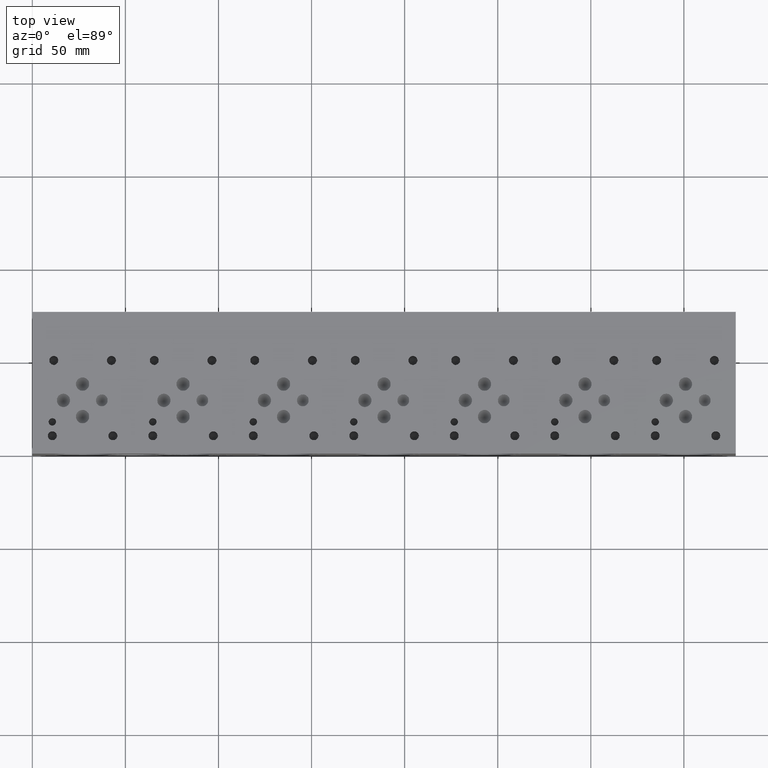
[diagram: clean part render]
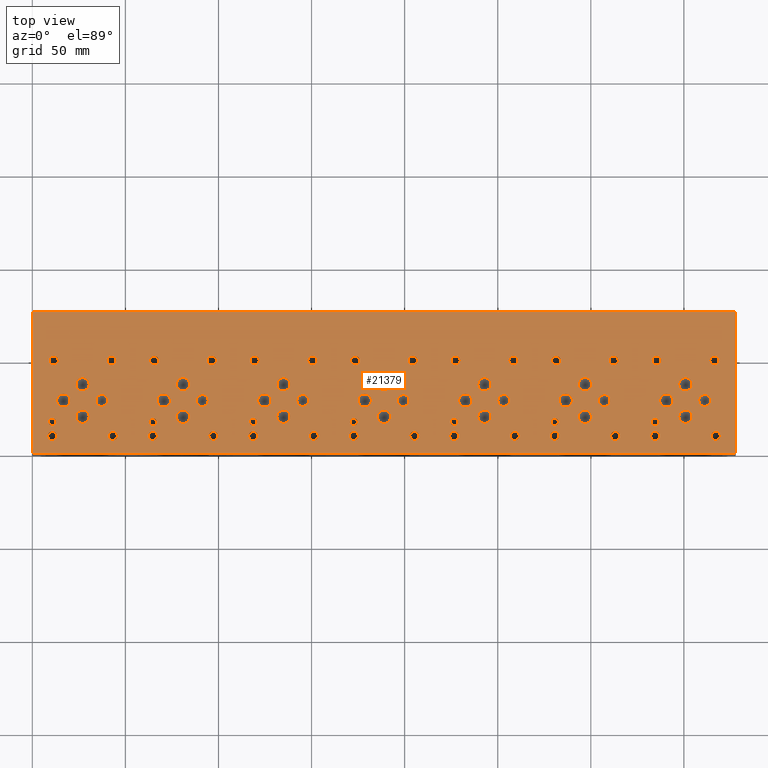
[diagram: same view with one face highlighted and labeled with its STEP entity id]
A machine part, top view. The second image highlights one B-rep face of the part: STEP entity #21379.
In plain terms, the highlighted planar face has unit normal (0, 0, 1).
Its self-contained STEP definition (entity closure, byte-faithful):
#779=CIRCLE('',#22509,1.9812);
#780=CIRCLE('',#22510,1.9812);
#783=CIRCLE('',#22515,1.9812);
#784=CIRCLE('',#22516,1.9812);
#787=CIRCLE('',#22521,1.9812);
#788=CIRCLE('',#22522,1.9812);
#791=CIRCLE('',#22527,1.9812);
#792=CIRCLE('',#22528,1.9812);
#795=CIRCLE('',#22533,1.9812);
#796=CIRCLE('',#22534,1.9812);
#799=CIRCLE('',#22539,1.9812);
#800=CIRCLE('',#22540,1.9812);
#803=CIRCLE('',#22545,3.175);
#804=CIRCLE('',#22546,3.175);
#807=CIRCLE('',#22551,3.175);
#808=CIRCLE('',#22552,3.175);
#811=CIRCLE('',#22557,3.175);
#812=CIRCLE('',#22558,3.175);
#815=CIRCLE('',#22563,3.175);
#816=CIRCLE('',#22564,3.175);
#819=CIRCLE('',#22569,3.175);
#820=CIRCLE('',#22570,3.175);
#823=CIRCLE('',#22575,3.175);
#824=CIRCLE('',#22576,3.175);
#827=CIRCLE('',#22581,3.175);
#828=CIRCLE('',#22582,3.175);
#831=CIRCLE('',#22587,3.5687);
#832=CIRCLE('',#22588,3.5687);
#835=CIRCLE('',#22593,3.5687);
#836=CIRCLE('',#22594,3.5687);
#839=CIRCLE('',#22599,3.5687);
#840=CIRCLE('',#22600,3.5687);
#843=CIRCLE('',#22605,3.5687);
#844=CIRCLE('',#22606,3.5687);
#847=CIRCLE('',#22611,3.5687);
#848=CIRCLE('',#22612,3.5687);
#851=CIRCLE('',#22617,3.5687);
#852=CIRCLE('',#22618,3.5687);
#855=CIRCLE('',#22623,3.5687);
#856=CIRCLE('',#22624,3.5687);
#859=CIRCLE('',#22629,3.5687);
#860=CIRCLE('',#22630,3.5687);
#863=CIRCLE('',#22635,3.5687);
#864=CIRCLE('',#22636,3.5687);
#867=CIRCLE('',#22641,3.5687);
#868=CIRCLE('',#22642,3.5687);
#871=CIRCLE('',#22647,3.5687);
#872=CIRCLE('',#22648,3.5687);
#875=CIRCLE('',#22653,3.5687);
#876=CIRCLE('',#22654,3.5687);
#879=CIRCLE('',#22659,3.5687);
#880=CIRCLE('',#22660,3.5687);
#883=CIRCLE('',#22665,3.5687);
#884=CIRCLE('',#22666,3.5687);
#887=CIRCLE('',#22671,3.5687);
#888=CIRCLE('',#22672,3.5687);
#891=CIRCLE('',#22677,3.5687);
#892=CIRCLE('',#22678,3.5687);
#895=CIRCLE('',#22683,3.5687);
#896=CIRCLE('',#22684,3.5687);
#899=CIRCLE('',#22689,3.5687);
#900=CIRCLE('',#22690,3.5687);
#903=CIRCLE('',#22695,3.5687);
#904=CIRCLE('',#22696,3.5687);
#907=CIRCLE('',#22701,3.5687);
#908=CIRCLE('',#22702,3.5687);
#911=CIRCLE('',#22707,3.5687);
#912=CIRCLE('',#22708,3.5687);
#915=CIRCLE('',#22713,1.9812);
#916=CIRCLE('',#22714,1.9812);
#922=CIRCLE('',#22723,2.413);
#923=CIRCLE('',#22724,2.413);
#929=CIRCLE('',#22734,2.413);
#930=CIRCLE('',#22735,2.413);
#936=CIRCLE('',#22745,2.413);
#937=CIRCLE('',#22746,2.413);
#943=CIRCLE('',#22756,2.413);
#944=CIRCLE('',#22757,2.413);
#950=CIRCLE('',#22767,2.413);
#951=CIRCLE('',#22768,2.413);
#957=CIRCLE('',#22778,2.413);
#958=CIRCLE('',#22779,2.413);
#964=CIRCLE('',#22789,2.413);
#965=CIRCLE('',#22790,2.413);
#971=CIRCLE('',#22800,2.413);
#972=CIRCLE('',#22801,2.413);
#978=CIRCLE('',#22811,2.413);
#979=CIRCLE('',#22812,2.413);
#985=CIRCLE('',#22822,2.413);
#986=CIRCLE('',#22823,2.413);
#992=CIRCLE('',#22833,2.413);
#993=CIRCLE('',#22834,2.413);
#999=CIRCLE('',#22844,2.413);
#1000=CIRCLE('',#22845,2.413);
#1006=CIRCLE('',#22855,2.413);
#1007=CIRCLE('',#22856,2.413);
#1013=CIRCLE('',#22866,2.413);
#1014=CIRCLE('',#22867,2.413);
#1020=CIRCLE('',#22877,2.413);
#1021=CIRCLE('',#22878,2.413);
#1027=CIRCLE('',#22888,2.413);
#1028=CIRCLE('',#22889,2.413);
#1034=CIRCLE('',#22899,2.413);
#1035=CIRCLE('',#22900,2.413);
#1041=CIRCLE('',#22910,2.413);
#1042=CIRCLE('',#22911,2.413);
#1048=CIRCLE('',#22921,2.413);
#1049=CIRCLE('',#22922,2.413);
#1055=CIRCLE('',#22932,2.413);
#1056=CIRCLE('',#22933,2.413);
#1062=CIRCLE('',#22943,2.413);
#1063=CIRCLE('',#22944,2.413);
#1069=CIRCLE('',#22954,2.413);
#1070=CIRCLE('',#22955,2.413);
#1076=CIRCLE('',#22965,2.413);
#1077=CIRCLE('',#22966,2.413);
#1083=CIRCLE('',#22976,2.413);
#1084=CIRCLE('',#22977,2.413);
#1090=CIRCLE('',#22987,2.413);
#1091=CIRCLE('',#22988,2.413);
#1097=CIRCLE('',#22998,2.413);
#1098=CIRCLE('',#22999,2.413);
#1104=CIRCLE('',#23009,2.413);
#1105=CIRCLE('',#23010,2.413);
#1111=CIRCLE('',#23020,2.413);
#1112=CIRCLE('',#23021,2.413);
#1281=FACE_BOUND('',#4284,.T.);
#1282=FACE_BOUND('',#4285,.T.);
#1283=FACE_BOUND('',#4286,.T.);
#1284=FACE_BOUND('',#4287,.T.);
#1285=FACE_BOUND('',#4288,.T.);
#1286=FACE_BOUND('',#4289,.T.);
#1287=FACE_BOUND('',#4290,.T.);
#1288=FACE_BOUND('',#4291,.T.);
#1289=FACE_BOUND('',#4292,.T.);
#1290=FACE_BOUND('',#4293,.T.);
#1291=FACE_BOUND('',#4294,.T.);
#1292=FACE_BOUND('',#4295,.T.);
#1293=FACE_BOUND('',#4296,.T.);
#1294=FACE_BOUND('',#4297,.T.);
#1295=FACE_BOUND('',#4298,.T.);
#1296=FACE_BOUND('',#4299,.T.);
#1297=FACE_BOUND('',#4300,.T.);
#1298=FACE_BOUND('',#4301,.T.);
#1299=FACE_BOUND('',#4302,.T.);
#1300=FACE_BOUND('',#4303,.T.);
#1301=FACE_BOUND('',#4304,.T.);
#1302=FACE_BOUND('',#4305,.T.);
#1303=FACE_BOUND('',#4306,.T.);
#1304=FACE_BOUND('',#4307,.T.);
#1305=FACE_BOUND('',#4308,.T.);
#1306=FACE_BOUND('',#4309,.T.);
#1307=FACE_BOUND('',#4310,.T.);
#1308=FACE_BOUND('',#4311,.T.);
#1309=FACE_BOUND('',#4312,.T.);
#1310=FACE_BOUND('',#4313,.T.);
#1311=FACE_BOUND('',#4314,.T.);
#1312=FACE_BOUND('',#4315,.T.);
#1313=FACE_BOUND('',#4316,.T.);
#1314=FACE_BOUND('',#4317,.T.);
#1315=FACE_BOUND('',#4318,.T.);
#1316=FACE_BOUND('',#4319,.T.);
#1317=FACE_BOUND('',#4320,.T.);
#1318=FACE_BOUND('',#4321,.T.);
#1319=FACE_BOUND('',#4322,.T.);
#1320=FACE_BOUND('',#4323,.T.);
#1321=FACE_BOUND('',#4324,.T.);
#1322=FACE_BOUND('',#4325,.T.);
#1323=FACE_BOUND('',#4326,.T.);
#1324=FACE_BOUND('',#4327,.T.);
#1325=FACE_BOUND('',#4328,.T.);
#1326=FACE_BOUND('',#4329,.T.);
#1327=FACE_BOUND('',#4330,.T.);
#1328=FACE_BOUND('',#4331,.T.);
#1329=FACE_BOUND('',#4332,.T.);
#1330=FACE_BOUND('',#4333,.T.);
#1331=FACE_BOUND('',#4334,.T.);
#1332=FACE_BOUND('',#4335,.T.);
#1333=FACE_BOUND('',#4336,.T.);
#1334=FACE_BOUND('',#4337,.T.);
#1335=FACE_BOUND('',#4338,.T.);
#1336=FACE_BOUND('',#4339,.T.);
#1337=FACE_BOUND('',#4340,.T.);
#1338=FACE_BOUND('',#4341,.T.);
#1339=FACE_BOUND('',#4342,.T.);
#1340=FACE_BOUND('',#4343,.T.);
#1341=FACE_BOUND('',#4344,.T.);
#1342=FACE_BOUND('',#4345,.T.);
#1343=FACE_BOUND('',#4346,.T.);
#1877=PLANE('',#23027);
#2996=FACE_OUTER_BOUND('',#4283,.T.);
#4283=EDGE_LOOP('',(#19226,#19227,#19228,#19229));
#4284=EDGE_LOOP('',(#19230,#19231));
#4285=EDGE_LOOP('',(#19232,#19233));
#4286=EDGE_LOOP('',(#19234,#19235));
#4287=EDGE_LOOP('',(#19236,#19237));
#4288=EDGE_LOOP('',(#19238,#19239));
#4289=EDGE_LOOP('',(#19240,#19241));
#4290=EDGE_LOOP('',(#19242,#19243));
#4291=EDGE_LOOP('',(#19244,#19245));
#4292=EDGE_LOOP('',(#19246,#19247));
#4293=EDGE_LOOP('',(#19248,#19249));
#4294=EDGE_LOOP('',(#19250,#19251));
#4295=EDGE_LOOP('',(#19252,#19253));
#4296=EDGE_LOOP('',(#19254,#19255));
#4297=EDGE_LOOP('',(#19256,#19257));
#4298=EDGE_LOOP('',(#19258,#19259));
#4299=EDGE_LOOP('',(#19260,#19261));
#4300=EDGE_LOOP('',(#19262,#19263));
#4301=EDGE_LOOP('',(#19264,#19265));
#4302=EDGE_LOOP('',(#19266,#19267));
#4303=EDGE_LOOP('',(#19268,#19269));
#4304=EDGE_LOOP('',(#19270,#19271));
#4305=EDGE_LOOP('',(#19272,#19273));
#4306=EDGE_LOOP('',(#19274,#19275));
#4307=EDGE_LOOP('',(#19276,#19277));
#4308=EDGE_LOOP('',(#19278,#19279));
#4309=EDGE_LOOP('',(#19280,#19281));
#4310=EDGE_LOOP('',(#19282,#19283));
#4311=EDGE_LOOP('',(#19284,#19285));
#4312=EDGE_LOOP('',(#19286,#19287));
#4313=EDGE_LOOP('',(#19288,#19289));
#4314=EDGE_LOOP('',(#19290,#19291));
#4315=EDGE_LOOP('',(#19292,#19293));
#4316=EDGE_LOOP('',(#19294,#19295));
#4317=EDGE_LOOP('',(#19296,#19297));
#4318=EDGE_LOOP('',(#19298,#19299));
#4319=EDGE_LOOP('',(#19300,#19301));
#4320=EDGE_LOOP('',(#19302,#19303));
#4321=EDGE_LOOP('',(#19304,#19305));
#4322=EDGE_LOOP('',(#19306,#19307));
#4323=EDGE_LOOP('',(#19308,#19309));
#4324=EDGE_LOOP('',(#19310,#19311));
#4325=EDGE_LOOP('',(#19312,#19313));
#4326=EDGE_LOOP('',(#19314,#19315));
#4327=EDGE_LOOP('',(#19316,#19317));
#4328=EDGE_LOOP('',(#19318,#19319));
#4329=EDGE_LOOP('',(#19320,#19321));
#4330=EDGE_LOOP('',(#19322,#19323));
#4331=EDGE_LOOP('',(#19324,#19325));
#4332=EDGE_LOOP('',(#19326,#19327));
#4333=EDGE_LOOP('',(#19328,#19329));
#4334=EDGE_LOOP('',(#19330,#19331));
#4335=EDGE_LOOP('',(#19332,#19333));
#4336=EDGE_LOOP('',(#19334,#19335));
#4337=EDGE_LOOP('',(#19336,#19337));
#4338=EDGE_LOOP('',(#19338,#19339));
#4339=EDGE_LOOP('',(#19340,#19341));
#4340=EDGE_LOOP('',(#19342,#19343));
#4341=EDGE_LOOP('',(#19344,#19345));
#4342=EDGE_LOOP('',(#19346,#19347));
#4343=EDGE_LOOP('',(#19348,#19349));
#4344=EDGE_LOOP('',(#19350,#19351));
#4345=EDGE_LOOP('',(#19352,#19353));
#4346=EDGE_LOOP('',(#19354,#19355));
#4394=LINE('',#28385,#6145);
#5667=LINE('',#34726,#7418);
#5725=LINE('',#34997,#7476);
#6098=LINE('',#37333,#7849);
#6145=VECTOR('',#23101,10.);
#7418=VECTOR('',#25266,10.);
#7476=VECTOR('',#25378,10.);
#7849=VECTOR('',#28041,10.);
#8376=VERTEX_POINT('',#28382);
#8377=VERTEX_POINT('',#28384);
#9543=VERTEX_POINT('',#34724);
#9601=VERTEX_POINT('',#34996);
#10024=VERTEX_POINT('',#36267);
#10025=VERTEX_POINT('',#36268);
#10029=VERTEX_POINT('',#36280);
#10030=VERTEX_POINT('',#36281);
#10034=VERTEX_POINT('',#36293);
#10035=VERTEX_POINT('',#36294);
#10039=VERTEX_POINT('',#36306);
#10040=VERTEX_POINT('',#36307);
#10044=VERTEX_POINT('',#36319);
#10045=VERTEX_POINT('',#36320);
#10049=VERTEX_POINT('',#36332);
#10050=VERTEX_POINT('',#36333);
#10054=VERTEX_POINT('',#36345);
#10055=VERTEX_POINT('',#36346);
#10059=VERTEX_POINT('',#36358);
#10060=VERTEX_POINT('',#36359);
#10064=VERTEX_POINT('',#36371);
#10065=VERTEX_POINT('',#36372);
#10069=VERTEX_POINT('',#36384);
#10070=VERTEX_POINT('',#36385);
#10074=VERTEX_POINT('',#36397);
#10075=VERTEX_POINT('',#36398);
#10079=VERTEX_POINT('',#36410);
#10080=VERTEX_POINT('',#36411);
#10084=VERTEX_POINT('',#36423);
#10085=VERTEX_POINT('',#36424);
#10089=VERTEX_POINT('',#36436);
#10090=VERTEX_POINT('',#36437);
#10094=VERTEX_POINT('',#36449);
#10095=VERTEX_POINT('',#36450);
#10099=VERTEX_POINT('',#36462);
#10100=VERTEX_POINT('',#36463);
#10104=VERTEX_POINT('',#36475);
#10105=VERTEX_POINT('',#36476);
#10109=VERTEX_POINT('',#36488);
#10110=VERTEX_POINT('',#36489);
#10114=VERTEX_POINT('',#36501);
#10115=VERTEX_POINT('',#36502);
#10119=VERTEX_POINT('',#36514);
#10120=VERTEX_POINT('',#36515);
#10124=VERTEX_POINT('',#36527);
#10125=VERTEX_POINT('',#36528);
#10129=VERTEX_POINT('',#36540);
#10130=VERTEX_POINT('',#36541);
#10134=VERTEX_POINT('',#36553);
#10135=VERTEX_POINT('',#36554);
#10139=VERTEX_POINT('',#36566);
#10140=VERTEX_POINT('',#36567);
#10144=VERTEX_POINT('',#36579);
#10145=VERTEX_POINT('',#36580);
#10149=VERTEX_POINT('',#36592);
#10150=VERTEX_POINT('',#36593);
#10154=VERTEX_POINT('',#36605);
#10155=VERTEX_POINT('',#36606);
#10159=VERTEX_POINT('',#36618);
#10160=VERTEX_POINT('',#36619);
#10164=VERTEX_POINT('',#36631);
#10165=VERTEX_POINT('',#36632);
#10169=VERTEX_POINT('',#36644);
#10170=VERTEX_POINT('',#36645);
#10174=VERTEX_POINT('',#36657);
#10175=VERTEX_POINT('',#36658);
#10179=VERTEX_POINT('',#36670);
#10180=VERTEX_POINT('',#36671);
#10184=VERTEX_POINT('',#36683);
#10185=VERTEX_POINT('',#36684);
#10189=VERTEX_POINT('',#36696);
#10190=VERTEX_POINT('',#36697);
#10194=VERTEX_POINT('',#36709);
#10195=VERTEX_POINT('',#36710);
#10202=VERTEX_POINT('',#36729);
#10203=VERTEX_POINT('',#36730);
#10210=VERTEX_POINT('',#36751);
#10211=VERTEX_POINT('',#36752);
#10218=VERTEX_POINT('',#36773);
#10219=VERTEX_POINT('',#36774);
#10226=VERTEX_POINT('',#36795);
#10227=VERTEX_POINT('',#36796);
#10234=VERTEX_POINT('',#36817);
#10235=VERTEX_POINT('',#36818);
#10242=VERTEX_POINT('',#36839);
#10243=VERTEX_POINT('',#36840);
#10250=VERTEX_POINT('',#36861);
#10251=VERTEX_POINT('',#36862);
#10258=VERTEX_POINT('',#36883);
#10259=VERTEX_POINT('',#36884);
#10266=VERTEX_POINT('',#36905);
#10267=VERTEX_POINT('',#36906);
#10274=VERTEX_POINT('',#36927);
#10275=VERTEX_POINT('',#36928);
#10282=VERTEX_POINT('',#36949);
#10283=VERTEX_POINT('',#36950);
#10290=VERTEX_POINT('',#36971);
#10291=VERTEX_POINT('',#36972);
#10298=VERTEX_POINT('',#36993);
#10299=VERTEX_POINT('',#36994);
#10306=VERTEX_POINT('',#37015);
#10307=VERTEX_POINT('',#37016);
#10314=VERTEX_POINT('',#37037);
#10315=VERTEX_POINT('',#37038);
#10322=VERTEX_POINT('',#37059);
#10323=VERTEX_POINT('',#37060);
#10330=VERTEX_POINT('',#37081);
#10331=VERTEX_POINT('',#37082);
#10338=VERTEX_POINT('',#37103);
#10339=VERTEX_POINT('',#37104);
#10346=VERTEX_POINT('',#37125);
#10347=VERTEX_POINT('',#37126);
#10354=VERTEX_POINT('',#37147);
#10355=VERTEX_POINT('',#37148);
#10362=VERTEX_POINT('',#37169);
#10363=VERTEX_POINT('',#37170);
#10370=VERTEX_POINT('',#37191);
#10371=VERTEX_POINT('',#37192);
#10378=VERTEX_POINT('',#37213);
#10379=VERTEX_POINT('',#37214);
#10386=VERTEX_POINT('',#37235);
#10387=VERTEX_POINT('',#37236);
#10394=VERTEX_POINT('',#37257);
#10395=VERTEX_POINT('',#37258);
#10402=VERTEX_POINT('',#37279);
#10403=VERTEX_POINT('',#37280);
#10410=VERTEX_POINT('',#37301);
#10411=VERTEX_POINT('',#37302);
#10418=VERTEX_POINT('',#37323);
#10419=VERTEX_POINT('',#37324);
#10494=EDGE_CURVE('',#8377,#8376,#4394,.T.);
#12229=EDGE_CURVE('',#8376,#9543,#5667,.T.);
#12311=EDGE_CURVE('',#9601,#8377,#5725,.T.);
#12911=EDGE_CURVE('',#10024,#10025,#779,.T.);
#12912=EDGE_CURVE('',#10025,#10024,#780,.T.);
#12917=EDGE_CURVE('',#10029,#10030,#783,.T.);
#12918=EDGE_CURVE('',#10030,#10029,#784,.T.);
#12923=EDGE_CURVE('',#10034,#10035,#787,.T.);
#12924=EDGE_CURVE('',#10035,#10034,#788,.T.);
#12929=EDGE_CURVE('',#10039,#10040,#791,.T.);
#12930=EDGE_CURVE('',#10040,#10039,#792,.T.);
#12935=EDGE_CURVE('',#10044,#10045,#795,.T.);
#12936=EDGE_CURVE('',#10045,#10044,#796,.T.);
#12941=EDGE_CURVE('',#10049,#10050,#799,.T.);
#12942=EDGE_CURVE('',#10050,#10049,#800,.T.);
#12947=EDGE_CURVE('',#10054,#10055,#803,.T.);
#12948=EDGE_CURVE('',#10055,#10054,#804,.T.);
#12953=EDGE_CURVE('',#10059,#10060,#807,.T.);
#12954=EDGE_CURVE('',#10060,#10059,#808,.T.);
#12959=EDGE_CURVE('',#10064,#10065,#811,.T.);
#12960=EDGE_CURVE('',#10065,#10064,#812,.T.);
#12965=EDGE_CURVE('',#10069,#10070,#815,.T.);
#12966=EDGE_CURVE('',#10070,#10069,#816,.T.);
#12971=EDGE_CURVE('',#10074,#10075,#819,.T.);
#12972=EDGE_CURVE('',#10075,#10074,#820,.T.);
#12977=EDGE_CURVE('',#10079,#10080,#823,.T.);
#12978=EDGE_CURVE('',#10080,#10079,#824,.T.);
#12983=EDGE_CURVE('',#10084,#10085,#827,.T.);
#12984=EDGE_CURVE('',#10085,#10084,#828,.T.);
#12989=EDGE_CURVE('',#10089,#10090,#831,.T.);
#12990=EDGE_CURVE('',#10090,#10089,#832,.T.);
#12995=EDGE_CURVE('',#10094,#10095,#835,.T.);
#12996=EDGE_CURVE('',#10095,#10094,#836,.T.);
#13001=EDGE_CURVE('',#10099,#10100,#839,.T.);
#13002=EDGE_CURVE('',#10100,#10099,#840,.T.);
#13007=EDGE_CURVE('',#10104,#10105,#843,.T.);
#13008=EDGE_CURVE('',#10105,#10104,#844,.T.);
#13013=EDGE_CURVE('',#10109,#10110,#847,.T.);
#13014=EDGE_CURVE('',#10110,#10109,#848,.T.);
#13019=EDGE_CURVE('',#10114,#10115,#851,.T.);
#13020=EDGE_CURVE('',#10115,#10114,#852,.T.);
#13025=EDGE_CURVE('',#10119,#10120,#855,.T.);
#13026=EDGE_CURVE('',#10120,#10119,#856,.T.);
#13031=EDGE_CURVE('',#10124,#10125,#859,.T.);
#13032=EDGE_CURVE('',#10125,#10124,#860,.T.);
#13037=EDGE_CURVE('',#10129,#10130,#863,.T.);
#13038=EDGE_CURVE('',#10130,#10129,#864,.T.);
#13043=EDGE_CURVE('',#10134,#10135,#867,.T.);
#13044=EDGE_CURVE('',#10135,#10134,#868,.T.);
#13049=EDGE_CURVE('',#10139,#10140,#871,.T.);
#13050=EDGE_CURVE('',#10140,#10139,#872,.T.);
#13055=EDGE_CURVE('',#10144,#10145,#875,.T.);
#13056=EDGE_CURVE('',#10145,#10144,#876,.T.);
#13061=EDGE_CURVE('',#10149,#10150,#879,.T.);
#13062=EDGE_CURVE('',#10150,#10149,#880,.T.);
#13067=EDGE_CURVE('',#10154,#10155,#883,.T.);
#13068=EDGE_CURVE('',#10155,#10154,#884,.T.);
#13073=EDGE_CURVE('',#10159,#10160,#887,.T.);
#13074=EDGE_CURVE('',#10160,#10159,#888,.T.);
#13079=EDGE_CURVE('',#10164,#10165,#891,.T.);
#13080=EDGE_CURVE('',#10165,#10164,#892,.T.);
#13085=EDGE_CURVE('',#10169,#10170,#895,.T.);
#13086=EDGE_CURVE('',#10170,#10169,#896,.T.);
#13091=EDGE_CURVE('',#10174,#10175,#899,.T.);
#13092=EDGE_CURVE('',#10175,#10174,#900,.T.);
#13097=EDGE_CURVE('',#10179,#10180,#903,.T.);
#13098=EDGE_CURVE('',#10180,#10179,#904,.T.);
#13103=EDGE_CURVE('',#10184,#10185,#907,.T.);
#13104=EDGE_CURVE('',#10185,#10184,#908,.T.);
#13109=EDGE_CURVE('',#10189,#10190,#911,.T.);
#13110=EDGE_CURVE('',#10190,#10189,#912,.T.);
#13115=EDGE_CURVE('',#10194,#10195,#915,.T.);
#13116=EDGE_CURVE('',#10195,#10194,#916,.T.);
#13124=EDGE_CURVE('',#10202,#10203,#922,.T.);
#13125=EDGE_CURVE('',#10203,#10202,#923,.T.);
#13134=EDGE_CURVE('',#10210,#10211,#929,.T.);
#13135=EDGE_CURVE('',#10211,#10210,#930,.T.);
#13144=EDGE_CURVE('',#10218,#10219,#936,.T.);
#13145=EDGE_CURVE('',#10219,#10218,#937,.T.);
#13154=EDGE_CURVE('',#10226,#10227,#943,.T.);
#13155=EDGE_CURVE('',#10227,#10226,#944,.T.);
#13164=EDGE_CURVE('',#10234,#10235,#950,.T.);
#13165=EDGE_CURVE('',#10235,#10234,#951,.T.);
#13174=EDGE_CURVE('',#10242,#10243,#957,.T.);
#13175=EDGE_CURVE('',#10243,#10242,#958,.T.);
#13184=EDGE_CURVE('',#10250,#10251,#964,.T.);
#13185=EDGE_CURVE('',#10251,#10250,#965,.T.);
#13194=EDGE_CURVE('',#10258,#10259,#971,.T.);
#13195=EDGE_CURVE('',#10259,#10258,#972,.T.);
#13204=EDGE_CURVE('',#10266,#10267,#978,.T.);
#13205=EDGE_CURVE('',#10267,#10266,#979,.T.);
#13214=EDGE_CURVE('',#10274,#10275,#985,.T.);
#13215=EDGE_CURVE('',#10275,#10274,#986,.T.);
#13224=EDGE_CURVE('',#10282,#10283,#992,.T.);
#13225=EDGE_CURVE('',#10283,#10282,#993,.T.);
#13234=EDGE_CURVE('',#10290,#10291,#999,.T.);
#13235=EDGE_CURVE('',#10291,#10290,#1000,.T.);
#13244=EDGE_CURVE('',#10298,#10299,#1006,.T.);
#13245=EDGE_CURVE('',#10299,#10298,#1007,.T.);
#13254=EDGE_CURVE('',#10306,#10307,#1013,.T.);
#13255=EDGE_CURVE('',#10307,#10306,#1014,.T.);
#13264=EDGE_CURVE('',#10314,#10315,#1020,.T.);
#13265=EDGE_CURVE('',#10315,#10314,#1021,.T.);
#13274=EDGE_CURVE('',#10322,#10323,#1027,.T.);
#13275=EDGE_CURVE('',#10323,#10322,#1028,.T.);
#13284=EDGE_CURVE('',#10330,#10331,#1034,.T.);
#13285=EDGE_CURVE('',#10331,#10330,#1035,.T.);
#13294=EDGE_CURVE('',#10338,#10339,#1041,.T.);
#13295=EDGE_CURVE('',#10339,#10338,#1042,.T.);
#13304=EDGE_CURVE('',#10346,#10347,#1048,.T.);
#13305=EDGE_CURVE('',#10347,#10346,#1049,.T.);
#13314=EDGE_CURVE('',#10354,#10355,#1055,.T.);
#13315=EDGE_CURVE('',#10355,#10354,#1056,.T.);
#13324=EDGE_CURVE('',#10362,#10363,#1062,.T.);
#13325=EDGE_CURVE('',#10363,#10362,#1063,.T.);
#13334=EDGE_CURVE('',#10370,#10371,#1069,.T.);
#13335=EDGE_CURVE('',#10371,#10370,#1070,.T.);
#13344=EDGE_CURVE('',#10378,#10379,#1076,.T.);
#13345=EDGE_CURVE('',#10379,#10378,#1077,.T.);
#13354=EDGE_CURVE('',#10386,#10387,#1083,.T.);
#13355=EDGE_CURVE('',#10387,#10386,#1084,.T.);
#13364=EDGE_CURVE('',#10394,#10395,#1090,.T.);
#13365=EDGE_CURVE('',#10395,#10394,#1091,.T.);
#13374=EDGE_CURVE('',#10402,#10403,#1097,.T.);
#13375=EDGE_CURVE('',#10403,#10402,#1098,.T.);
#13384=EDGE_CURVE('',#10410,#10411,#1104,.T.);
#13385=EDGE_CURVE('',#10411,#10410,#1105,.T.);
#13394=EDGE_CURVE('',#10418,#10419,#1111,.T.);
#13395=EDGE_CURVE('',#10419,#10418,#1112,.T.);
#13399=EDGE_CURVE('',#9543,#9601,#6098,.T.);
#19226=ORIENTED_EDGE('',*,*,#10494,.T.);
#19227=ORIENTED_EDGE('',*,*,#12229,.T.);
#19228=ORIENTED_EDGE('',*,*,#13399,.T.);
#19229=ORIENTED_EDGE('',*,*,#12311,.T.);
#19230=ORIENTED_EDGE('',*,*,#12911,.T.);
#19231=ORIENTED_EDGE('',*,*,#12912,.T.);
#19232=ORIENTED_EDGE('',*,*,#12917,.T.);
#19233=ORIENTED_EDGE('',*,*,#12918,.T.);
#19234=ORIENTED_EDGE('',*,*,#12923,.T.);
#19235=ORIENTED_EDGE('',*,*,#12924,.T.);
#19236=ORIENTED_EDGE('',*,*,#12929,.T.);
#19237=ORIENTED_EDGE('',*,*,#12930,.T.);
#19238=ORIENTED_EDGE('',*,*,#12935,.T.);
#19239=ORIENTED_EDGE('',*,*,#12936,.T.);
#19240=ORIENTED_EDGE('',*,*,#12941,.T.);
#19241=ORIENTED_EDGE('',*,*,#12942,.T.);
#19242=ORIENTED_EDGE('',*,*,#12947,.T.);
#19243=ORIENTED_EDGE('',*,*,#12948,.T.);
#19244=ORIENTED_EDGE('',*,*,#12953,.T.);
#19245=ORIENTED_EDGE('',*,*,#12954,.T.);
#19246=ORIENTED_EDGE('',*,*,#12959,.T.);
#19247=ORIENTED_EDGE('',*,*,#12960,.T.);
#19248=ORIENTED_EDGE('',*,*,#12965,.T.);
#19249=ORIENTED_EDGE('',*,*,#12966,.T.);
#19250=ORIENTED_EDGE('',*,*,#12971,.T.);
#19251=ORIENTED_EDGE('',*,*,#12972,.T.);
#19252=ORIENTED_EDGE('',*,*,#12977,.T.);
#19253=ORIENTED_EDGE('',*,*,#12978,.T.);
#19254=ORIENTED_EDGE('',*,*,#12983,.T.);
#19255=ORIENTED_EDGE('',*,*,#12984,.T.);
#19256=ORIENTED_EDGE('',*,*,#12989,.T.);
#19257=ORIENTED_EDGE('',*,*,#12990,.T.);
#19258=ORIENTED_EDGE('',*,*,#12995,.T.);
#19259=ORIENTED_EDGE('',*,*,#12996,.T.);
#19260=ORIENTED_EDGE('',*,*,#13001,.T.);
#19261=ORIENTED_EDGE('',*,*,#13002,.T.);
#19262=ORIENTED_EDGE('',*,*,#13007,.T.);
#19263=ORIENTED_EDGE('',*,*,#13008,.T.);
#19264=ORIENTED_EDGE('',*,*,#13013,.T.);
#19265=ORIENTED_EDGE('',*,*,#13014,.T.);
#19266=ORIENTED_EDGE('',*,*,#13019,.T.);
#19267=ORIENTED_EDGE('',*,*,#13020,.T.);
#19268=ORIENTED_EDGE('',*,*,#13025,.T.);
#19269=ORIENTED_EDGE('',*,*,#13026,.T.);
#19270=ORIENTED_EDGE('',*,*,#13031,.T.);
#19271=ORIENTED_EDGE('',*,*,#13032,.T.);
#19272=ORIENTED_EDGE('',*,*,#13037,.T.);
#19273=ORIENTED_EDGE('',*,*,#13038,.T.);
#19274=ORIENTED_EDGE('',*,*,#13043,.T.);
#19275=ORIENTED_EDGE('',*,*,#13044,.T.);
#19276=ORIENTED_EDGE('',*,*,#13049,.T.);
#19277=ORIENTED_EDGE('',*,*,#13050,.T.);
#19278=ORIENTED_EDGE('',*,*,#13055,.T.);
#19279=ORIENTED_EDGE('',*,*,#13056,.T.);
#19280=ORIENTED_EDGE('',*,*,#13061,.T.);
#19281=ORIENTED_EDGE('',*,*,#13062,.T.);
#19282=ORIENTED_EDGE('',*,*,#13067,.T.);
#19283=ORIENTED_EDGE('',*,*,#13068,.T.);
#19284=ORIENTED_EDGE('',*,*,#13073,.T.);
#19285=ORIENTED_EDGE('',*,*,#13074,.T.);
#19286=ORIENTED_EDGE('',*,*,#13079,.T.);
#19287=ORIENTED_EDGE('',*,*,#13080,.T.);
#19288=ORIENTED_EDGE('',*,*,#13085,.T.);
#19289=ORIENTED_EDGE('',*,*,#13086,.T.);
#19290=ORIENTED_EDGE('',*,*,#13091,.T.);
#19291=ORIENTED_EDGE('',*,*,#13092,.T.);
#19292=ORIENTED_EDGE('',*,*,#13097,.T.);
#19293=ORIENTED_EDGE('',*,*,#13098,.T.);
#19294=ORIENTED_EDGE('',*,*,#13103,.T.);
#19295=ORIENTED_EDGE('',*,*,#13104,.T.);
#19296=ORIENTED_EDGE('',*,*,#13109,.T.);
#19297=ORIENTED_EDGE('',*,*,#13110,.T.);
#19298=ORIENTED_EDGE('',*,*,#13115,.T.);
#19299=ORIENTED_EDGE('',*,*,#13116,.T.);
#19300=ORIENTED_EDGE('',*,*,#13124,.T.);
#19301=ORIENTED_EDGE('',*,*,#13125,.T.);
#19302=ORIENTED_EDGE('',*,*,#13134,.T.);
#19303=ORIENTED_EDGE('',*,*,#13135,.T.);
#19304=ORIENTED_EDGE('',*,*,#13144,.T.);
#19305=ORIENTED_EDGE('',*,*,#13145,.T.);
#19306=ORIENTED_EDGE('',*,*,#13154,.T.);
#19307=ORIENTED_EDGE('',*,*,#13155,.T.);
#19308=ORIENTED_EDGE('',*,*,#13164,.T.);
#19309=ORIENTED_EDGE('',*,*,#13165,.T.);
#19310=ORIENTED_EDGE('',*,*,#13174,.T.);
#19311=ORIENTED_EDGE('',*,*,#13175,.T.);
#19312=ORIENTED_EDGE('',*,*,#13184,.T.);
#19313=ORIENTED_EDGE('',*,*,#13185,.T.);
#19314=ORIENTED_EDGE('',*,*,#13194,.T.);
#19315=ORIENTED_EDGE('',*,*,#13195,.T.);
#19316=ORIENTED_EDGE('',*,*,#13204,.T.);
#19317=ORIENTED_EDGE('',*,*,#13205,.T.);
#19318=ORIENTED_EDGE('',*,*,#13214,.T.);
#19319=ORIENTED_EDGE('',*,*,#13215,.T.);
#19320=ORIENTED_EDGE('',*,*,#13224,.T.);
#19321=ORIENTED_EDGE('',*,*,#13225,.T.);
#19322=ORIENTED_EDGE('',*,*,#13234,.T.);
#19323=ORIENTED_EDGE('',*,*,#13235,.T.);
#19324=ORIENTED_EDGE('',*,*,#13244,.T.);
#19325=ORIENTED_EDGE('',*,*,#13245,.T.);
#19326=ORIENTED_EDGE('',*,*,#13254,.T.);
#19327=ORIENTED_EDGE('',*,*,#13255,.T.);
#19328=ORIENTED_EDGE('',*,*,#13264,.T.);
#19329=ORIENTED_EDGE('',*,*,#13265,.T.);
#19330=ORIENTED_EDGE('',*,*,#13274,.T.);
#19331=ORIENTED_EDGE('',*,*,#13275,.T.);
#19332=ORIENTED_EDGE('',*,*,#13284,.T.);
#19333=ORIENTED_EDGE('',*,*,#13285,.T.);
#19334=ORIENTED_EDGE('',*,*,#13294,.T.);
#19335=ORIENTED_EDGE('',*,*,#13295,.T.);
#19336=ORIENTED_EDGE('',*,*,#13304,.T.);
#19337=ORIENTED_EDGE('',*,*,#13305,.T.);
#19338=ORIENTED_EDGE('',*,*,#13314,.T.);
#19339=ORIENTED_EDGE('',*,*,#13315,.T.);
#19340=ORIENTED_EDGE('',*,*,#13324,.T.);
#19341=ORIENTED_EDGE('',*,*,#13325,.T.);
#19342=ORIENTED_EDGE('',*,*,#13334,.T.);
#19343=ORIENTED_EDGE('',*,*,#13335,.T.);
#19344=ORIENTED_EDGE('',*,*,#13344,.T.);
#19345=ORIENTED_EDGE('',*,*,#13345,.T.);
#19346=ORIENTED_EDGE('',*,*,#13354,.T.);
#19347=ORIENTED_EDGE('',*,*,#13355,.T.);
#19348=ORIENTED_EDGE('',*,*,#13364,.T.);
#19349=ORIENTED_EDGE('',*,*,#13365,.T.);
#19350=ORIENTED_EDGE('',*,*,#13374,.T.);
#19351=ORIENTED_EDGE('',*,*,#13375,.T.);
#19352=ORIENTED_EDGE('',*,*,#13384,.T.);
#19353=ORIENTED_EDGE('',*,*,#13385,.T.);
#19354=ORIENTED_EDGE('',*,*,#13394,.T.);
#19355=ORIENTED_EDGE('',*,*,#13395,.T.);
#21379=ADVANCED_FACE('',(#2996,#1281,#1282,#1283,#1284,#1285,#1286,#1287,
#1288,#1289,#1290,#1291,#1292,#1293,#1294,#1295,#1296,#1297,#1298,#1299,
#1300,#1301,#1302,#1303,#1304,#1305,#1306,#1307,#1308,#1309,#1310,#1311,
#1312,#1313,#1314,#1315,#1316,#1317,#1318,#1319,#1320,#1321,#1322,#1323,
#1324,#1325,#1326,#1327,#1328,#1329,#1330,#1331,#1332,#1333,#1334,#1335,
#1336,#1337,#1338,#1339,#1340,#1341,#1342,#1343),#1877,.T.);
#22509=AXIS2_PLACEMENT_3D('',#36269,#26855,#26856);
#22510=AXIS2_PLACEMENT_3D('',#36270,#26857,#26858);
#22515=AXIS2_PLACEMENT_3D('',#36282,#26869,#26870);
#22516=AXIS2_PLACEMENT_3D('',#36283,#26871,#26872);
#22521=AXIS2_PLACEMENT_3D('',#36295,#26883,#26884);
#22522=AXIS2_PLACEMENT_3D('',#36296,#26885,#26886);
#22527=AXIS2_PLACEMENT_3D('',#36308,#26897,#26898);
#22528=AXIS2_PLACEMENT_3D('',#36309,#26899,#26900);
#22533=AXIS2_PLACEMENT_3D('',#36321,#26911,#26912);
#22534=AXIS2_PLACEMENT_3D('',#36322,#26913,#26914);
#22539=AXIS2_PLACEMENT_3D('',#36334,#26925,#26926);
#22540=AXIS2_PLACEMENT_3D('',#36335,#26927,#26928);
#22545=AXIS2_PLACEMENT_3D('',#36347,#26939,#26940);
#22546=AXIS2_PLACEMENT_3D('',#36348,#26941,#26942);
#22551=AXIS2_PLACEMENT_3D('',#36360,#26953,#26954);
#22552=AXIS2_PLACEMENT_3D('',#36361,#26955,#26956);
#22557=AXIS2_PLACEMENT_3D('',#36373,#26967,#26968);
#22558=AXIS2_PLACEMENT_3D('',#36374,#26969,#26970);
#22563=AXIS2_PLACEMENT_3D('',#36386,#26981,#26982);
#22564=AXIS2_PLACEMENT_3D('',#36387,#26983,#26984);
#22569=AXIS2_PLACEMENT_3D('',#36399,#26995,#26996);
#22570=AXIS2_PLACEMENT_3D('',#36400,#26997,#26998);
#22575=AXIS2_PLACEMENT_3D('',#36412,#27009,#27010);
#22576=AXIS2_PLACEMENT_3D('',#36413,#27011,#27012);
#22581=AXIS2_PLACEMENT_3D('',#36425,#27023,#27024);
#22582=AXIS2_PLACEMENT_3D('',#36426,#27025,#27026);
#22587=AXIS2_PLACEMENT_3D('',#36438,#27037,#27038);
#22588=AXIS2_PLACEMENT_3D('',#36439,#27039,#27040);
#22593=AXIS2_PLACEMENT_3D('',#36451,#27051,#27052);
#22594=AXIS2_PLACEMENT_3D('',#36452,#27053,#27054);
#22599=AXIS2_PLACEMENT_3D('',#36464,#27065,#27066);
#22600=AXIS2_PLACEMENT_3D('',#36465,#27067,#27068);
#22605=AXIS2_PLACEMENT_3D('',#36477,#27079,#27080);
#22606=AXIS2_PLACEMENT_3D('',#36478,#27081,#27082);
#22611=AXIS2_PLACEMENT_3D('',#36490,#27093,#27094);
#22612=AXIS2_PLACEMENT_3D('',#36491,#27095,#27096);
#22617=AXIS2_PLACEMENT_3D('',#36503,#27107,#27108);
#22618=AXIS2_PLACEMENT_3D('',#36504,#27109,#27110);
#22623=AXIS2_PLACEMENT_3D('',#36516,#27121,#27122);
#22624=AXIS2_PLACEMENT_3D('',#36517,#27123,#27124);
#22629=AXIS2_PLACEMENT_3D('',#36529,#27135,#27136);
#22630=AXIS2_PLACEMENT_3D('',#36530,#27137,#27138);
#22635=AXIS2_PLACEMENT_3D('',#36542,#27149,#27150);
#22636=AXIS2_PLACEMENT_3D('',#36543,#27151,#27152);
#22641=AXIS2_PLACEMENT_3D('',#36555,#27163,#27164);
#22642=AXIS2_PLACEMENT_3D('',#36556,#27165,#27166);
#22647=AXIS2_PLACEMENT_3D('',#36568,#27177,#27178);
#22648=AXIS2_PLACEMENT_3D('',#36569,#27179,#27180);
#22653=AXIS2_PLACEMENT_3D('',#36581,#27191,#27192);
#22654=AXIS2_PLACEMENT_3D('',#36582,#27193,#27194);
#22659=AXIS2_PLACEMENT_3D('',#36594,#27205,#27206);
#22660=AXIS2_PLACEMENT_3D('',#36595,#27207,#27208);
#22665=AXIS2_PLACEMENT_3D('',#36607,#27219,#27220);
#22666=AXIS2_PLACEMENT_3D('',#36608,#27221,#27222);
#22671=AXIS2_PLACEMENT_3D('',#36620,#27233,#27234);
#22672=AXIS2_PLACEMENT_3D('',#36621,#27235,#27236);
#22677=AXIS2_PLACEMENT_3D('',#36633,#27247,#27248);
#22678=AXIS2_PLACEMENT_3D('',#36634,#27249,#27250);
#22683=AXIS2_PLACEMENT_3D('',#36646,#27261,#27262);
#22684=AXIS2_PLACEMENT_3D('',#36647,#27263,#27264);
#22689=AXIS2_PLACEMENT_3D('',#36659,#27275,#27276);
#22690=AXIS2_PLACEMENT_3D('',#36660,#27277,#27278);
#22695=AXIS2_PLACEMENT_3D('',#36672,#27289,#27290);
#22696=AXIS2_PLACEMENT_3D('',#36673,#27291,#27292);
#22701=AXIS2_PLACEMENT_3D('',#36685,#27303,#27304);
#22702=AXIS2_PLACEMENT_3D('',#36686,#27305,#27306);
#22707=AXIS2_PLACEMENT_3D('',#36698,#27317,#27318);
#22708=AXIS2_PLACEMENT_3D('',#36699,#27319,#27320);
#22713=AXIS2_PLACEMENT_3D('',#36711,#27331,#27332);
#22714=AXIS2_PLACEMENT_3D('',#36712,#27333,#27334);
#22723=AXIS2_PLACEMENT_3D('',#36731,#27353,#27354);
#22724=AXIS2_PLACEMENT_3D('',#36732,#27355,#27356);
#22734=AXIS2_PLACEMENT_3D('',#36753,#27378,#27379);
#22735=AXIS2_PLACEMENT_3D('',#36754,#27380,#27381);
#22745=AXIS2_PLACEMENT_3D('',#36775,#27403,#27404);
#22746=AXIS2_PLACEMENT_3D('',#36776,#27405,#27406);
#22756=AXIS2_PLACEMENT_3D('',#36797,#27428,#27429);
#22757=AXIS2_PLACEMENT_3D('',#36798,#27430,#27431);
#22767=AXIS2_PLACEMENT_3D('',#36819,#27453,#27454);
#22768=AXIS2_PLACEMENT_3D('',#36820,#27455,#27456);
#22778=AXIS2_PLACEMENT_3D('',#36841,#27478,#27479);
#22779=AXIS2_PLACEMENT_3D('',#36842,#27480,#27481);
#22789=AXIS2_PLACEMENT_3D('',#36863,#27503,#27504);
#22790=AXIS2_PLACEMENT_3D('',#36864,#27505,#27506);
#22800=AXIS2_PLACEMENT_3D('',#36885,#27528,#27529);
#22801=AXIS2_PLACEMENT_3D('',#36886,#27530,#27531);
#22811=AXIS2_PLACEMENT_3D('',#36907,#27553,#27554);
#22812=AXIS2_PLACEMENT_3D('',#36908,#27555,#27556);
#22822=AXIS2_PLACEMENT_3D('',#36929,#27578,#27579);
#22823=AXIS2_PLACEMENT_3D('',#36930,#27580,#27581);
#22833=AXIS2_PLACEMENT_3D('',#36951,#27603,#27604);
#22834=AXIS2_PLACEMENT_3D('',#36952,#27605,#27606);
#22844=AXIS2_PLACEMENT_3D('',#36973,#27628,#27629);
#22845=AXIS2_PLACEMENT_3D('',#36974,#27630,#27631);
#22855=AXIS2_PLACEMENT_3D('',#36995,#27653,#27654);
#22856=AXIS2_PLACEMENT_3D('',#36996,#27655,#27656);
#22866=AXIS2_PLACEMENT_3D('',#37017,#27678,#27679);
#22867=AXIS2_PLACEMENT_3D('',#37018,#27680,#27681);
#22877=AXIS2_PLACEMENT_3D('',#37039,#27703,#27704);
#22878=AXIS2_PLACEMENT_3D('',#37040,#27705,#27706);
#22888=AXIS2_PLACEMENT_3D('',#37061,#27728,#27729);
#22889=AXIS2_PLACEMENT_3D('',#37062,#27730,#27731);
#22899=AXIS2_PLACEMENT_3D('',#37083,#27753,#27754);
#22900=AXIS2_PLACEMENT_3D('',#37084,#27755,#27756);
#22910=AXIS2_PLACEMENT_3D('',#37105,#27778,#27779);
#22911=AXIS2_PLACEMENT_3D('',#37106,#27780,#27781);
#22921=AXIS2_PLACEMENT_3D('',#37127,#27803,#27804);
#22922=AXIS2_PLACEMENT_3D('',#37128,#27805,#27806);
#22932=AXIS2_PLACEMENT_3D('',#37149,#27828,#27829);
#22933=AXIS2_PLACEMENT_3D('',#37150,#27830,#27831);
#22943=AXIS2_PLACEMENT_3D('',#37171,#27853,#27854);
#22944=AXIS2_PLACEMENT_3D('',#37172,#27855,#27856);
#22954=AXIS2_PLACEMENT_3D('',#37193,#27878,#27879);
#22955=AXIS2_PLACEMENT_3D('',#37194,#27880,#27881);
#22965=AXIS2_PLACEMENT_3D('',#37215,#27903,#27904);
#22966=AXIS2_PLACEMENT_3D('',#37216,#27905,#27906);
#22976=AXIS2_PLACEMENT_3D('',#37237,#27928,#27929);
#22977=AXIS2_PLACEMENT_3D('',#37238,#27930,#27931);
#22987=AXIS2_PLACEMENT_3D('',#37259,#27953,#27954);
#22988=AXIS2_PLACEMENT_3D('',#37260,#27955,#27956);
#22998=AXIS2_PLACEMENT_3D('',#37281,#27978,#27979);
#22999=AXIS2_PLACEMENT_3D('',#37282,#27980,#27981);
#23009=AXIS2_PLACEMENT_3D('',#37303,#28003,#28004);
#23010=AXIS2_PLACEMENT_3D('',#37304,#28005,#28006);
#23020=AXIS2_PLACEMENT_3D('',#37325,#28028,#28029);
#23021=AXIS2_PLACEMENT_3D('',#37326,#28030,#28031);
#23027=AXIS2_PLACEMENT_3D('',#37336,#28046,#28047);
#23101=DIRECTION('',(1.,0.,0.));
#25266=DIRECTION('',(0.,1.,0.));
#25378=DIRECTION('',(0.,-1.,0.));
#26855=DIRECTION('center_axis',(0.,0.,-1.));
#26856=DIRECTION('ref_axis',(1.,0.,0.));
#26857=DIRECTION('center_axis',(0.,0.,-1.));
#26858=DIRECTION('ref_axis',(1.,0.,0.));
#26869=DIRECTION('center_axis',(0.,0.,-1.));
#26870=DIRECTION('ref_axis',(1.,0.,0.));
#26871=DIRECTION('center_axis',(0.,0.,-1.));
#26872=DIRECTION('ref_axis',(1.,0.,0.));
#26883=DIRECTION('center_axis',(0.,0.,-1.));
#26884=DIRECTION('ref_axis',(1.,0.,0.));
#26885=DIRECTION('center_axis',(0.,0.,-1.));
#26886=DIRECTION('ref_axis',(1.,0.,0.));
#26897=DIRECTION('center_axis',(0.,0.,-1.));
#26898=DIRECTION('ref_axis',(1.,0.,0.));
#26899=DIRECTION('center_axis',(0.,0.,-1.));
#26900=DIRECTION('ref_axis',(1.,0.,0.));
#26911=DIRECTION('center_axis',(0.,0.,-1.));
#26912=DIRECTION('ref_axis',(1.,0.,0.));
#26913=DIRECTION('center_axis',(0.,0.,-1.));
#26914=DIRECTION('ref_axis',(1.,0.,0.));
#26925=DIRECTION('center_axis',(0.,0.,-1.));
#26926=DIRECTION('ref_axis',(1.,0.,0.));
#26927=DIRECTION('center_axis',(0.,0.,-1.));
#26928=DIRECTION('ref_axis',(1.,0.,0.));
#26939=DIRECTION('center_axis',(0.,0.,-1.));
#26940=DIRECTION('ref_axis',(1.,0.,0.));
#26941=DIRECTION('center_axis',(0.,0.,-1.));
#26942=DIRECTION('ref_axis',(1.,0.,0.));
#26953=DIRECTION('center_axis',(0.,0.,-1.));
#26954=DIRECTION('ref_axis',(1.,0.,0.));
#26955=DIRECTION('center_axis',(0.,0.,-1.));
#26956=DIRECTION('ref_axis',(1.,0.,0.));
#26967=DIRECTION('center_axis',(0.,0.,-1.));
#26968=DIRECTION('ref_axis',(1.,0.,0.));
#26969=DIRECTION('center_axis',(0.,0.,-1.));
#26970=DIRECTION('ref_axis',(1.,0.,0.));
#26981=DIRECTION('center_axis',(0.,0.,-1.));
#26982=DIRECTION('ref_axis',(1.,0.,0.));
#26983=DIRECTION('center_axis',(0.,0.,-1.));
#26984=DIRECTION('ref_axis',(1.,0.,0.));
#26995=DIRECTION('center_axis',(0.,0.,-1.));
#26996=DIRECTION('ref_axis',(1.,0.,0.));
#26997=DIRECTION('center_axis',(0.,0.,-1.));
#26998=DIRECTION('ref_axis',(1.,0.,0.));
#27009=DIRECTION('center_axis',(0.,0.,-1.));
#27010=DIRECTION('ref_axis',(1.,0.,0.));
#27011=DIRECTION('center_axis',(0.,0.,-1.));
#27012=DIRECTION('ref_axis',(1.,0.,0.));
#27023=DIRECTION('center_axis',(0.,0.,-1.));
#27024=DIRECTION('ref_axis',(1.,0.,0.));
#27025=DIRECTION('center_axis',(0.,0.,-1.));
#27026=DIRECTION('ref_axis',(1.,0.,0.));
#27037=DIRECTION('center_axis',(0.,0.,-1.));
#27038=DIRECTION('ref_axis',(1.,0.,0.));
#27039=DIRECTION('center_axis',(0.,0.,-1.));
#27040=DIRECTION('ref_axis',(1.,0.,0.));
#27051=DIRECTION('center_axis',(0.,0.,-1.));
#27052=DIRECTION('ref_axis',(1.,0.,0.));
#27053=DIRECTION('center_axis',(0.,0.,-1.));
#27054=DIRECTION('ref_axis',(1.,0.,0.));
#27065=DIRECTION('center_axis',(0.,0.,-1.));
#27066=DIRECTION('ref_axis',(1.,0.,0.));
#27067=DIRECTION('center_axis',(0.,0.,-1.));
#27068=DIRECTION('ref_axis',(1.,0.,0.));
#27079=DIRECTION('center_axis',(0.,0.,-1.));
#27080=DIRECTION('ref_axis',(1.,0.,0.));
#27081=DIRECTION('center_axis',(0.,0.,-1.));
#27082=DIRECTION('ref_axis',(1.,0.,0.));
#27093=DIRECTION('center_axis',(0.,0.,-1.));
#27094=DIRECTION('ref_axis',(1.,0.,0.));
#27095=DIRECTION('center_axis',(0.,0.,-1.));
#27096=DIRECTION('ref_axis',(1.,0.,0.));
#27107=DIRECTION('center_axis',(0.,0.,-1.));
#27108=DIRECTION('ref_axis',(1.,0.,0.));
#27109=DIRECTION('center_axis',(0.,0.,-1.));
#27110=DIRECTION('ref_axis',(1.,0.,0.));
#27121=DIRECTION('center_axis',(0.,0.,-1.));
#27122=DIRECTION('ref_axis',(1.,0.,0.));
#27123=DIRECTION('center_axis',(0.,0.,-1.));
#27124=DIRECTION('ref_axis',(1.,0.,0.));
#27135=DIRECTION('center_axis',(0.,0.,-1.));
#27136=DIRECTION('ref_axis',(1.,0.,0.));
#27137=DIRECTION('center_axis',(0.,0.,-1.));
#27138=DIRECTION('ref_axis',(1.,0.,0.));
#27149=DIRECTION('center_axis',(0.,0.,-1.));
#27150=DIRECTION('ref_axis',(1.,0.,0.));
#27151=DIRECTION('center_axis',(0.,0.,-1.));
#27152=DIRECTION('ref_axis',(1.,0.,0.));
#27163=DIRECTION('center_axis',(0.,0.,-1.));
#27164=DIRECTION('ref_axis',(1.,0.,0.));
#27165=DIRECTION('center_axis',(0.,0.,-1.));
#27166=DIRECTION('ref_axis',(1.,0.,0.));
#27177=DIRECTION('center_axis',(0.,0.,-1.));
#27178=DIRECTION('ref_axis',(1.,0.,0.));
#27179=DIRECTION('center_axis',(0.,0.,-1.));
#27180=DIRECTION('ref_axis',(1.,0.,0.));
#27191=DIRECTION('center_axis',(0.,0.,-1.));
#27192=DIRECTION('ref_axis',(1.,0.,0.));
#27193=DIRECTION('center_axis',(0.,0.,-1.));
#27194=DIRECTION('ref_axis',(1.,0.,0.));
#27205=DIRECTION('center_axis',(0.,0.,-1.));
#27206=DIRECTION('ref_axis',(1.,0.,0.));
#27207=DIRECTION('center_axis',(0.,0.,-1.));
#27208=DIRECTION('ref_axis',(1.,0.,0.));
#27219=DIRECTION('center_axis',(0.,0.,-1.));
#27220=DIRECTION('ref_axis',(1.,0.,0.));
#27221=DIRECTION('center_axis',(0.,0.,-1.));
#27222=DIRECTION('ref_axis',(1.,0.,0.));
#27233=DIRECTION('center_axis',(0.,0.,-1.));
#27234=DIRECTION('ref_axis',(1.,0.,0.));
#27235=DIRECTION('center_axis',(0.,0.,-1.));
#27236=DIRECTION('ref_axis',(1.,0.,0.));
#27247=DIRECTION('center_axis',(0.,0.,-1.));
#27248=DIRECTION('ref_axis',(1.,0.,0.));
#27249=DIRECTION('center_axis',(0.,0.,-1.));
#27250=DIRECTION('ref_axis',(1.,0.,0.));
#27261=DIRECTION('center_axis',(0.,0.,-1.));
#27262=DIRECTION('ref_axis',(1.,0.,0.));
#27263=DIRECTION('center_axis',(0.,0.,-1.));
#27264=DIRECTION('ref_axis',(1.,0.,0.));
#27275=DIRECTION('center_axis',(0.,0.,-1.));
#27276=DIRECTION('ref_axis',(1.,0.,0.));
#27277=DIRECTION('center_axis',(0.,0.,-1.));
#27278=DIRECTION('ref_axis',(1.,0.,0.));
#27289=DIRECTION('center_axis',(0.,0.,-1.));
#27290=DIRECTION('ref_axis',(1.,0.,0.));
#27291=DIRECTION('center_axis',(0.,0.,-1.));
#27292=DIRECTION('ref_axis',(1.,0.,0.));
#27303=DIRECTION('center_axis',(0.,0.,-1.));
#27304=DIRECTION('ref_axis',(1.,0.,0.));
#27305=DIRECTION('center_axis',(0.,0.,-1.));
#27306=DIRECTION('ref_axis',(1.,0.,0.));
#27317=DIRECTION('center_axis',(0.,0.,-1.));
#27318=DIRECTION('ref_axis',(1.,0.,0.));
#27319=DIRECTION('center_axis',(0.,0.,-1.));
#27320=DIRECTION('ref_axis',(1.,0.,0.));
#27331=DIRECTION('center_axis',(0.,0.,-1.));
#27332=DIRECTION('ref_axis',(1.,0.,0.));
#27333=DIRECTION('center_axis',(0.,0.,-1.));
#27334=DIRECTION('ref_axis',(1.,0.,0.));
#27353=DIRECTION('center_axis',(0.,0.,-1.));
#27354=DIRECTION('ref_axis',(1.,0.,0.));
#27355=DIRECTION('center_axis',(0.,0.,-1.));
#27356=DIRECTION('ref_axis',(1.,0.,0.));
#27378=DIRECTION('center_axis',(0.,0.,-1.));
#27379=DIRECTION('ref_axis',(1.,0.,0.));
#27380=DIRECTION('center_axis',(0.,0.,-1.));
#27381=DIRECTION('ref_axis',(1.,0.,0.));
#27403=DIRECTION('center_axis',(0.,0.,-1.));
#27404=DIRECTION('ref_axis',(1.,0.,0.));
#27405=DIRECTION('center_axis',(0.,0.,-1.));
#27406=DIRECTION('ref_axis',(1.,0.,0.));
#27428=DIRECTION('center_axis',(0.,0.,-1.));
#27429=DIRECTION('ref_axis',(1.,0.,0.));
#27430=DIRECTION('center_axis',(0.,0.,-1.));
#27431=DIRECTION('ref_axis',(1.,0.,0.));
#27453=DIRECTION('center_axis',(0.,0.,-1.));
#27454=DIRECTION('ref_axis',(1.,0.,0.));
#27455=DIRECTION('center_axis',(0.,0.,-1.));
#27456=DIRECTION('ref_axis',(1.,0.,0.));
#27478=DIRECTION('center_axis',(0.,0.,-1.));
#27479=DIRECTION('ref_axis',(1.,0.,0.));
#27480=DIRECTION('center_axis',(0.,0.,-1.));
#27481=DIRECTION('ref_axis',(1.,0.,0.));
#27503=DIRECTION('center_axis',(0.,0.,-1.));
#27504=DIRECTION('ref_axis',(1.,0.,0.));
#27505=DIRECTION('center_axis',(0.,0.,-1.));
#27506=DIRECTION('ref_axis',(1.,0.,0.));
#27528=DIRECTION('center_axis',(0.,0.,-1.));
#27529=DIRECTION('ref_axis',(1.,0.,0.));
#27530=DIRECTION('center_axis',(0.,0.,-1.));
#27531=DIRECTION('ref_axis',(1.,0.,0.));
#27553=DIRECTION('center_axis',(0.,0.,-1.));
#27554=DIRECTION('ref_axis',(1.,0.,0.));
#27555=DIRECTION('center_axis',(0.,0.,-1.));
#27556=DIRECTION('ref_axis',(1.,0.,0.));
#27578=DIRECTION('center_axis',(0.,0.,-1.));
#27579=DIRECTION('ref_axis',(1.,0.,0.));
#27580=DIRECTION('center_axis',(0.,0.,-1.));
#27581=DIRECTION('ref_axis',(1.,0.,0.));
#27603=DIRECTION('center_axis',(0.,0.,-1.));
#27604=DIRECTION('ref_axis',(1.,0.,0.));
#27605=DIRECTION('center_axis',(0.,0.,-1.));
#27606=DIRECTION('ref_axis',(1.,0.,0.));
#27628=DIRECTION('center_axis',(0.,0.,-1.));
#27629=DIRECTION('ref_axis',(1.,0.,0.));
#27630=DIRECTION('center_axis',(0.,0.,-1.));
#27631=DIRECTION('ref_axis',(1.,0.,0.));
#27653=DIRECTION('center_axis',(0.,0.,-1.));
#27654=DIRECTION('ref_axis',(1.,0.,0.));
#27655=DIRECTION('center_axis',(0.,0.,-1.));
#27656=DIRECTION('ref_axis',(1.,0.,0.));
#27678=DIRECTION('center_axis',(0.,0.,-1.));
#27679=DIRECTION('ref_axis',(1.,0.,0.));
#27680=DIRECTION('center_axis',(0.,0.,-1.));
#27681=DIRECTION('ref_axis',(1.,0.,0.));
#27703=DIRECTION('center_axis',(0.,0.,-1.));
#27704=DIRECTION('ref_axis',(1.,0.,0.));
#27705=DIRECTION('center_axis',(0.,0.,-1.));
#27706=DIRECTION('ref_axis',(1.,0.,0.));
#27728=DIRECTION('center_axis',(0.,0.,-1.));
#27729=DIRECTION('ref_axis',(1.,0.,0.));
#27730=DIRECTION('center_axis',(0.,0.,-1.));
#27731=DIRECTION('ref_axis',(1.,0.,0.));
#27753=DIRECTION('center_axis',(0.,0.,-1.));
#27754=DIRECTION('ref_axis',(1.,0.,0.));
#27755=DIRECTION('center_axis',(0.,0.,-1.));
#27756=DIRECTION('ref_axis',(1.,0.,0.));
#27778=DIRECTION('center_axis',(0.,0.,-1.));
#27779=DIRECTION('ref_axis',(1.,0.,0.));
#27780=DIRECTION('center_axis',(0.,0.,-1.));
#27781=DIRECTION('ref_axis',(1.,0.,0.));
#27803=DIRECTION('center_axis',(0.,0.,-1.));
#27804=DIRECTION('ref_axis',(1.,0.,0.));
#27805=DIRECTION('center_axis',(0.,0.,-1.));
#27806=DIRECTION('ref_axis',(1.,0.,0.));
#27828=DIRECTION('center_axis',(0.,0.,-1.));
#27829=DIRECTION('ref_axis',(1.,0.,0.));
#27830=DIRECTION('center_axis',(0.,0.,-1.));
#27831=DIRECTION('ref_axis',(1.,0.,0.));
#27853=DIRECTION('center_axis',(0.,0.,-1.));
#27854=DIRECTION('ref_axis',(1.,0.,0.));
#27855=DIRECTION('center_axis',(0.,0.,-1.));
#27856=DIRECTION('ref_axis',(1.,0.,0.));
#27878=DIRECTION('center_axis',(0.,0.,-1.));
#27879=DIRECTION('ref_axis',(1.,0.,0.));
#27880=DIRECTION('center_axis',(0.,0.,-1.));
#27881=DIRECTION('ref_axis',(1.,0.,0.));
#27903=DIRECTION('center_axis',(0.,0.,-1.));
#27904=DIRECTION('ref_axis',(1.,0.,0.));
#27905=DIRECTION('center_axis',(0.,0.,-1.));
#27906=DIRECTION('ref_axis',(1.,0.,0.));
#27928=DIRECTION('center_axis',(0.,0.,-1.));
#27929=DIRECTION('ref_axis',(1.,0.,0.));
#27930=DIRECTION('center_axis',(0.,0.,-1.));
#27931=DIRECTION('ref_axis',(1.,0.,0.));
#27953=DIRECTION('center_axis',(0.,0.,-1.));
#27954=DIRECTION('ref_axis',(1.,0.,0.));
#27955=DIRECTION('center_axis',(0.,0.,-1.));
#27956=DIRECTION('ref_axis',(1.,0.,0.));
#27978=DIRECTION('center_axis',(0.,0.,-1.));
#27979=DIRECTION('ref_axis',(1.,0.,0.));
#27980=DIRECTION('center_axis',(0.,0.,-1.));
#27981=DIRECTION('ref_axis',(1.,0.,0.));
#28003=DIRECTION('center_axis',(0.,0.,-1.));
#28004=DIRECTION('ref_axis',(1.,0.,0.));
#28005=DIRECTION('center_axis',(0.,0.,-1.));
#28006=DIRECTION('ref_axis',(1.,0.,0.));
#28028=DIRECTION('center_axis',(0.,0.,-1.));
#28029=DIRECTION('ref_axis',(1.,0.,0.));
#28030=DIRECTION('center_axis',(0.,0.,-1.));
#28031=DIRECTION('ref_axis',(1.,0.,0.));
#28041=DIRECTION('',(-1.,0.,0.));
#28046=DIRECTION('center_axis',(0.,0.,1.));
#28047=DIRECTION('ref_axis',(1.,0.,0.));
#28382=CARTESIAN_POINT('',(377.825,0.,76.2));
#28384=CARTESIAN_POINT('',(0.,0.,76.2));
#28385=CARTESIAN_POINT('',(0.,0.,76.2));
#34724=CARTESIAN_POINT('',(377.825,76.2,76.2));
#34726=CARTESIAN_POINT('',(377.825,0.,76.2));
#34996=CARTESIAN_POINT('',(0.,76.2,76.2));
#34997=CARTESIAN_POINT('',(0.,76.2,76.2));
#36267=CARTESIAN_POINT('',(336.55,17.018,76.2));
#36268=CARTESIAN_POINT('',(332.5876,17.018,76.2));
#36269=CARTESIAN_POINT('Origin',(334.5688,17.018,76.2));
#36270=CARTESIAN_POINT('Origin',(334.5688,17.018,76.2));
#36280=CARTESIAN_POINT('',(228.6,17.018,76.2));
#36281=CARTESIAN_POINT('',(224.6376,17.018,76.2));
#36282=CARTESIAN_POINT('Origin',(226.6188,17.018,76.2));
#36283=CARTESIAN_POINT('Origin',(226.6188,17.018,76.2));
#36293=CARTESIAN_POINT('',(66.675,17.018,76.2));
#36294=CARTESIAN_POINT('',(62.7126,17.018,76.2));
#36295=CARTESIAN_POINT('Origin',(64.6938,17.018,76.2));
#36296=CARTESIAN_POINT('Origin',(64.6938,17.018,76.2));
#36306=CARTESIAN_POINT('',(120.65,17.018,76.2));
#36307=CARTESIAN_POINT('',(116.6876,17.018,76.2));
#36308=CARTESIAN_POINT('Origin',(118.6688,17.018,76.2));
#36309=CARTESIAN_POINT('Origin',(118.6688,17.018,76.2));
#36319=CARTESIAN_POINT('',(282.575,17.018,76.2));
#36320=CARTESIAN_POINT('',(278.6126,17.018,76.2));
#36321=CARTESIAN_POINT('Origin',(280.5938,17.018,76.2));
#36322=CARTESIAN_POINT('Origin',(280.5938,17.018,76.2));
#36332=CARTESIAN_POINT('',(174.625,17.018,76.2));
#36333=CARTESIAN_POINT('',(170.6626,17.018,76.2));
#36334=CARTESIAN_POINT('Origin',(172.6438,17.018,76.2));
#36335=CARTESIAN_POINT('Origin',(172.6438,17.018,76.2));
#36345=CARTESIAN_POINT('',(364.3376,28.575,76.2));
#36346=CARTESIAN_POINT('',(357.9876,28.575,76.2));
#36347=CARTESIAN_POINT('Origin',(361.1626,28.575,76.2));
#36348=CARTESIAN_POINT('Origin',(361.1626,28.575,76.2));
#36358=CARTESIAN_POINT('',(256.3876,28.575,76.2));
#36359=CARTESIAN_POINT('',(250.0376,28.575,76.2));
#36360=CARTESIAN_POINT('Origin',(253.2126,28.575,76.2));
#36361=CARTESIAN_POINT('Origin',(253.2126,28.575,76.2));
#36371=CARTESIAN_POINT('',(94.4626,28.575,76.2));
#36372=CARTESIAN_POINT('',(88.1126,28.575,76.2));
#36373=CARTESIAN_POINT('Origin',(91.2876,28.575,76.2));
#36374=CARTESIAN_POINT('Origin',(91.2876,28.575,76.2));
#36384=CARTESIAN_POINT('',(40.4876,28.575,76.2));
#36385=CARTESIAN_POINT('',(34.1376,28.575,76.2));
#36386=CARTESIAN_POINT('Origin',(37.3126,28.575,76.2));
#36387=CARTESIAN_POINT('Origin',(37.3126,28.575,76.2));
#36397=CARTESIAN_POINT('',(148.4376,28.575,76.2));
#36398=CARTESIAN_POINT('',(142.0876,28.575,76.2));
#36399=CARTESIAN_POINT('Origin',(145.2626,28.575,76.2));
#36400=CARTESIAN_POINT('Origin',(145.2626,28.575,76.2));
#36410=CARTESIAN_POINT('',(310.3626,28.575,76.2));
#36411=CARTESIAN_POINT('',(304.0126,28.575,76.2));
#36412=CARTESIAN_POINT('Origin',(307.1876,28.575,76.2));
#36413=CARTESIAN_POINT('Origin',(307.1876,28.575,76.2));
#36423=CARTESIAN_POINT('',(202.4126,28.575,76.2));
#36424=CARTESIAN_POINT('',(196.0626,28.575,76.2));
#36425=CARTESIAN_POINT('Origin',(199.2376,28.575,76.2));
#36426=CARTESIAN_POINT('Origin',(199.2376,28.575,76.2));
#36436=CARTESIAN_POINT('',(192.4685,37.3126,76.2));
#36437=CARTESIAN_POINT('',(185.3311,37.3126,76.2));
#36438=CARTESIAN_POINT('Origin',(188.8998,37.3126,76.2));
#36439=CARTESIAN_POINT('Origin',(188.8998,37.3126,76.2));
#36449=CARTESIAN_POINT('',(354.3935,19.8374,76.2));
#36450=CARTESIAN_POINT('',(347.2561,19.8374,76.2));
#36451=CARTESIAN_POINT('Origin',(350.8248,19.8374,76.2));
#36452=CARTESIAN_POINT('Origin',(350.8248,19.8374,76.2));
#36462=CARTESIAN_POINT('',(344.0811,28.575,76.2));
#36463=CARTESIAN_POINT('',(336.9437,28.575,76.2));
#36464=CARTESIAN_POINT('Origin',(340.5124,28.575,76.2));
#36465=CARTESIAN_POINT('Origin',(340.5124,28.575,76.2));
#36475=CARTESIAN_POINT('',(300.4185,37.3126,76.2));
#36476=CARTESIAN_POINT('',(293.2811,37.3126,76.2));
#36477=CARTESIAN_POINT('Origin',(296.8498,37.3126,76.2));
#36478=CARTESIAN_POINT('Origin',(296.8498,37.3126,76.2));
#36488=CARTESIAN_POINT('',(246.4435,19.8374,76.2));
#36489=CARTESIAN_POINT('',(239.3061,19.8374,76.2));
#36490=CARTESIAN_POINT('Origin',(242.8748,19.8374,76.2));
#36491=CARTESIAN_POINT('Origin',(242.8748,19.8374,76.2));
#36501=CARTESIAN_POINT('',(236.1311,28.575,76.2));
#36502=CARTESIAN_POINT('',(228.9937,28.575,76.2));
#36503=CARTESIAN_POINT('Origin',(232.5624,28.575,76.2));
#36504=CARTESIAN_POINT('Origin',(232.5624,28.575,76.2));
#36514=CARTESIAN_POINT('',(138.4935,37.3126,76.2));
#36515=CARTESIAN_POINT('',(131.3561,37.3126,76.2));
#36516=CARTESIAN_POINT('Origin',(134.9248,37.3126,76.2));
#36517=CARTESIAN_POINT('Origin',(134.9248,37.3126,76.2));
#36527=CARTESIAN_POINT('',(84.5185,19.8374,76.2));
#36528=CARTESIAN_POINT('',(77.3811,19.8374,76.2));
#36529=CARTESIAN_POINT('Origin',(80.9498,19.8374,76.2));
#36530=CARTESIAN_POINT('Origin',(80.9498,19.8374,76.2));
#36540=CARTESIAN_POINT('',(74.2061,28.575,76.2));
#36541=CARTESIAN_POINT('',(67.0687,28.575,76.2));
#36542=CARTESIAN_POINT('Origin',(70.6374,28.575,76.2));
#36543=CARTESIAN_POINT('Origin',(70.6374,28.575,76.2));
#36553=CARTESIAN_POINT('',(30.5435,37.3126,76.2));
#36554=CARTESIAN_POINT('',(23.4061,37.3126,76.2));
#36555=CARTESIAN_POINT('Origin',(26.9748,37.3126,76.2));
#36556=CARTESIAN_POINT('Origin',(26.9748,37.3126,76.2));
#36566=CARTESIAN_POINT('',(20.2311,28.575,76.2));
#36567=CARTESIAN_POINT('',(13.0937,28.575,76.2));
#36568=CARTESIAN_POINT('Origin',(16.6624,28.575,76.2));
#36569=CARTESIAN_POINT('Origin',(16.6624,28.575,76.2));
#36579=CARTESIAN_POINT('',(30.5435,19.8374,76.2));
#36580=CARTESIAN_POINT('',(23.4061,19.8374,76.2));
#36581=CARTESIAN_POINT('Origin',(26.9748,19.8374,76.2));
#36582=CARTESIAN_POINT('Origin',(26.9748,19.8374,76.2));
#36592=CARTESIAN_POINT('',(84.5185,37.3126,76.2));
#36593=CARTESIAN_POINT('',(77.3811,37.3126,76.2));
#36594=CARTESIAN_POINT('Origin',(80.9498,37.3126,76.2));
#36595=CARTESIAN_POINT('Origin',(80.9498,37.3126,76.2));
#36605=CARTESIAN_POINT('',(128.1811,28.575,76.2));
#36606=CARTESIAN_POINT('',(121.0437,28.575,76.2));
#36607=CARTESIAN_POINT('Origin',(124.6124,28.575,76.2));
#36608=CARTESIAN_POINT('Origin',(124.6124,28.575,76.2));
#36618=CARTESIAN_POINT('',(138.4935,19.8374,76.2));
#36619=CARTESIAN_POINT('',(131.3561,19.8374,76.2));
#36620=CARTESIAN_POINT('Origin',(134.9248,19.8374,76.2));
#36621=CARTESIAN_POINT('Origin',(134.9248,19.8374,76.2));
#36631=CARTESIAN_POINT('',(246.4435,37.3126,76.2));
#36632=CARTESIAN_POINT('',(239.3061,37.3126,76.2));
#36633=CARTESIAN_POINT('Origin',(242.8748,37.3126,76.2));
#36634=CARTESIAN_POINT('Origin',(242.8748,37.3126,76.2));
#36644=CARTESIAN_POINT('',(290.1061,28.575,76.2));
#36645=CARTESIAN_POINT('',(282.9687,28.575,76.2));
#36646=CARTESIAN_POINT('Origin',(286.5374,28.575,76.2));
#36647=CARTESIAN_POINT('Origin',(286.5374,28.575,76.2));
#36657=CARTESIAN_POINT('',(300.4185,19.8374,76.2));
#36658=CARTESIAN_POINT('',(293.2811,19.8374,76.2));
#36659=CARTESIAN_POINT('Origin',(296.8498,19.8374,76.2));
#36660=CARTESIAN_POINT('Origin',(296.8498,19.8374,76.2));
#36670=CARTESIAN_POINT('',(354.3935,37.3126,76.2));
#36671=CARTESIAN_POINT('',(347.2561,37.3126,76.2));
#36672=CARTESIAN_POINT('Origin',(350.8248,37.3126,76.2));
#36673=CARTESIAN_POINT('Origin',(350.8248,37.3126,76.2));
#36683=CARTESIAN_POINT('',(182.1561,28.575,76.2));
#36684=CARTESIAN_POINT('',(175.0187,28.575,76.2));
#36685=CARTESIAN_POINT('Origin',(178.5874,28.575,76.2));
#36686=CARTESIAN_POINT('Origin',(178.5874,28.575,76.2));
#36696=CARTESIAN_POINT('',(192.4685,19.8374,76.2));
#36697=CARTESIAN_POINT('',(185.3311,19.8374,76.2));
#36698=CARTESIAN_POINT('Origin',(188.8998,19.8374,76.2));
#36699=CARTESIAN_POINT('Origin',(188.8998,19.8374,76.2));
#36709=CARTESIAN_POINT('',(12.7,17.018,76.2));
#36710=CARTESIAN_POINT('',(8.7376,17.018,76.2));
#36711=CARTESIAN_POINT('Origin',(10.7188,17.018,76.2));
#36712=CARTESIAN_POINT('Origin',(10.7188,17.018,76.2));
#36729=CARTESIAN_POINT('',(207.5942,9.525,76.2));
#36730=CARTESIAN_POINT('',(202.7682,9.525,76.2));
#36731=CARTESIAN_POINT('Origin',(205.1812,9.525,76.2));
#36732=CARTESIAN_POINT('Origin',(205.1812,9.525,76.2));
#36751=CARTESIAN_POINT('',(175.8442,50.0126,76.2));
#36752=CARTESIAN_POINT('',(171.0182,50.0126,76.2));
#36753=CARTESIAN_POINT('Origin',(173.4312,50.0126,76.2));
#36754=CARTESIAN_POINT('Origin',(173.4312,50.0126,76.2));
#36773=CARTESIAN_POINT('',(369.5192,9.525,76.2));
#36774=CARTESIAN_POINT('',(364.6932,9.525,76.2));
#36775=CARTESIAN_POINT('Origin',(367.1062,9.525,76.2));
#36776=CARTESIAN_POINT('Origin',(367.1062,9.525,76.2));
#36795=CARTESIAN_POINT('',(337.7692,50.0126,76.2));
#36796=CARTESIAN_POINT('',(332.9432,50.0126,76.2));
#36797=CARTESIAN_POINT('Origin',(335.3562,50.0126,76.2));
#36798=CARTESIAN_POINT('Origin',(335.3562,50.0126,76.2));
#36817=CARTESIAN_POINT('',(315.5442,9.525,76.2));
#36818=CARTESIAN_POINT('',(310.7182,9.525,76.2));
#36819=CARTESIAN_POINT('Origin',(313.1312,9.525,76.2));
#36820=CARTESIAN_POINT('Origin',(313.1312,9.525,76.2));
#36839=CARTESIAN_POINT('',(283.7942,50.0126,76.2));
#36840=CARTESIAN_POINT('',(278.9682,50.0126,76.2));
#36841=CARTESIAN_POINT('Origin',(281.3812,50.0126,76.2));
#36842=CARTESIAN_POINT('Origin',(281.3812,50.0126,76.2));
#36861=CARTESIAN_POINT('',(261.5692,9.525,76.2));
#36862=CARTESIAN_POINT('',(256.7432,9.525,76.2));
#36863=CARTESIAN_POINT('Origin',(259.1562,9.525,76.2));
#36864=CARTESIAN_POINT('Origin',(259.1562,9.525,76.2));
#36883=CARTESIAN_POINT('',(229.8192,50.0126,76.2));
#36884=CARTESIAN_POINT('',(224.9932,50.0126,76.2));
#36885=CARTESIAN_POINT('Origin',(227.4062,50.0126,76.2));
#36886=CARTESIAN_POINT('Origin',(227.4062,50.0126,76.2));
#36905=CARTESIAN_POINT('',(153.6192,9.525,76.2));
#36906=CARTESIAN_POINT('',(148.7932,9.525,76.2));
#36907=CARTESIAN_POINT('Origin',(151.2062,9.525,76.2));
#36908=CARTESIAN_POINT('Origin',(151.2062,9.525,76.2));
#36927=CARTESIAN_POINT('',(121.8692,50.0126,76.2));
#36928=CARTESIAN_POINT('',(117.0432,50.0126,76.2));
#36929=CARTESIAN_POINT('Origin',(119.4562,50.0126,76.2));
#36930=CARTESIAN_POINT('Origin',(119.4562,50.0126,76.2));
#36949=CARTESIAN_POINT('',(99.6442,9.525,76.2));
#36950=CARTESIAN_POINT('',(94.8182,9.525,76.2));
#36951=CARTESIAN_POINT('Origin',(97.2312,9.525,76.2));
#36952=CARTESIAN_POINT('Origin',(97.2312,9.525,76.2));
#36971=CARTESIAN_POINT('',(67.8942,50.0126,76.2));
#36972=CARTESIAN_POINT('',(63.0682,50.0126,76.2));
#36973=CARTESIAN_POINT('Origin',(65.4812,50.0126,76.2));
#36974=CARTESIAN_POINT('Origin',(65.4812,50.0126,76.2));
#36993=CARTESIAN_POINT('',(45.6692,9.525,76.2));
#36994=CARTESIAN_POINT('',(40.8432,9.525,76.2));
#36995=CARTESIAN_POINT('Origin',(43.2562,9.525,76.2));
#36996=CARTESIAN_POINT('Origin',(43.2562,9.525,76.2));
#37015=CARTESIAN_POINT('',(13.9192,50.0126,76.2));
#37016=CARTESIAN_POINT('',(9.0932,50.0126,76.2));
#37017=CARTESIAN_POINT('Origin',(11.5062,50.0126,76.2));
#37018=CARTESIAN_POINT('Origin',(11.5062,50.0126,76.2));
#37037=CARTESIAN_POINT('',(44.8818,50.0126,76.2));
#37038=CARTESIAN_POINT('',(40.0558,50.0126,76.2));
#37039=CARTESIAN_POINT('Origin',(42.4688,50.0126,76.2));
#37040=CARTESIAN_POINT('Origin',(42.4688,50.0126,76.2));
#37059=CARTESIAN_POINT('',(13.1318,9.525,76.2));
#37060=CARTESIAN_POINT('',(8.3058,9.525,76.2));
#37061=CARTESIAN_POINT('Origin',(10.7188,9.525,76.2));
#37062=CARTESIAN_POINT('Origin',(10.7188,9.525,76.2));
#37081=CARTESIAN_POINT('',(98.8568,50.0126,76.2));
#37082=CARTESIAN_POINT('',(94.0308,50.0126,76.2));
#37083=CARTESIAN_POINT('Origin',(96.4438,50.0126,76.2));
#37084=CARTESIAN_POINT('Origin',(96.4438,50.0126,76.2));
#37103=CARTESIAN_POINT('',(67.1068,9.525,76.2));
#37104=CARTESIAN_POINT('',(62.2808,9.525,76.2));
#37105=CARTESIAN_POINT('Origin',(64.6938,9.525,76.2));
#37106=CARTESIAN_POINT('Origin',(64.6938,9.525,76.2));
#37125=CARTESIAN_POINT('',(152.8318,50.0126,76.2));
#37126=CARTESIAN_POINT('',(148.0058,50.0126,76.2));
#37127=CARTESIAN_POINT('Origin',(150.4188,50.0126,76.2));
#37128=CARTESIAN_POINT('Origin',(150.4188,50.0126,76.2));
#37147=CARTESIAN_POINT('',(121.0818,9.525,76.2));
#37148=CARTESIAN_POINT('',(116.2558,9.525,76.2));
#37149=CARTESIAN_POINT('Origin',(118.6688,9.525,76.2));
#37150=CARTESIAN_POINT('Origin',(118.6688,9.525,76.2));
#37169=CARTESIAN_POINT('',(260.7818,50.0126,76.2));
#37170=CARTESIAN_POINT('',(255.9558,50.0126,76.2));
#37171=CARTESIAN_POINT('Origin',(258.3688,50.0126,76.2));
#37172=CARTESIAN_POINT('Origin',(258.3688,50.0126,76.2));
#37191=CARTESIAN_POINT('',(229.0318,9.525,76.2));
#37192=CARTESIAN_POINT('',(224.2058,9.525,76.2));
#37193=CARTESIAN_POINT('Origin',(226.6188,9.525,76.2));
#37194=CARTESIAN_POINT('Origin',(226.6188,9.525,76.2));
#37213=CARTESIAN_POINT('',(314.7568,50.0126,76.2));
#37214=CARTESIAN_POINT('',(309.9308,50.0126,76.2));
#37215=CARTESIAN_POINT('Origin',(312.3438,50.0126,76.2));
#37216=CARTESIAN_POINT('Origin',(312.3438,50.0126,76.2));
#37235=CARTESIAN_POINT('',(283.0068,9.525,76.2));
#37236=CARTESIAN_POINT('',(278.1808,9.525,76.2));
#37237=CARTESIAN_POINT('Origin',(280.5938,9.525,76.2));
#37238=CARTESIAN_POINT('Origin',(280.5938,9.525,76.2));
#37257=CARTESIAN_POINT('',(368.7318,50.0126,76.2));
#37258=CARTESIAN_POINT('',(363.9058,50.0126,76.2));
#37259=CARTESIAN_POINT('Origin',(366.3188,50.0126,76.2));
#37260=CARTESIAN_POINT('Origin',(366.3188,50.0126,76.2));
#37279=CARTESIAN_POINT('',(336.9818,9.525,76.2));
#37280=CARTESIAN_POINT('',(332.1558,9.525,76.2));
#37281=CARTESIAN_POINT('Origin',(334.5688,9.525,76.2));
#37282=CARTESIAN_POINT('Origin',(334.5688,9.525,76.2));
#37301=CARTESIAN_POINT('',(206.8068,50.0126,76.2));
#37302=CARTESIAN_POINT('',(201.9808,50.0126,76.2));
#37303=CARTESIAN_POINT('Origin',(204.3938,50.0126,76.2));
#37304=CARTESIAN_POINT('Origin',(204.3938,50.0126,76.2));
#37323=CARTESIAN_POINT('',(175.0568,9.525,76.2));
#37324=CARTESIAN_POINT('',(170.2308,9.525,76.2));
#37325=CARTESIAN_POINT('Origin',(172.6438,9.525,76.2));
#37326=CARTESIAN_POINT('Origin',(172.6438,9.525,76.2));
#37333=CARTESIAN_POINT('',(377.825,76.2,76.2));
#37336=CARTESIAN_POINT('Origin',(188.9125,38.1,76.2));